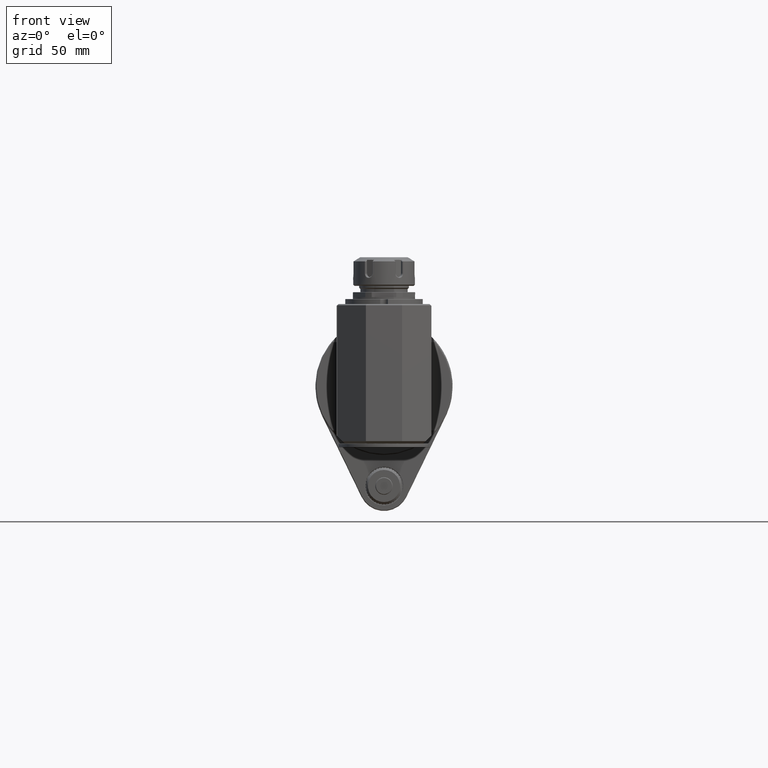
[diagram: clean part render]
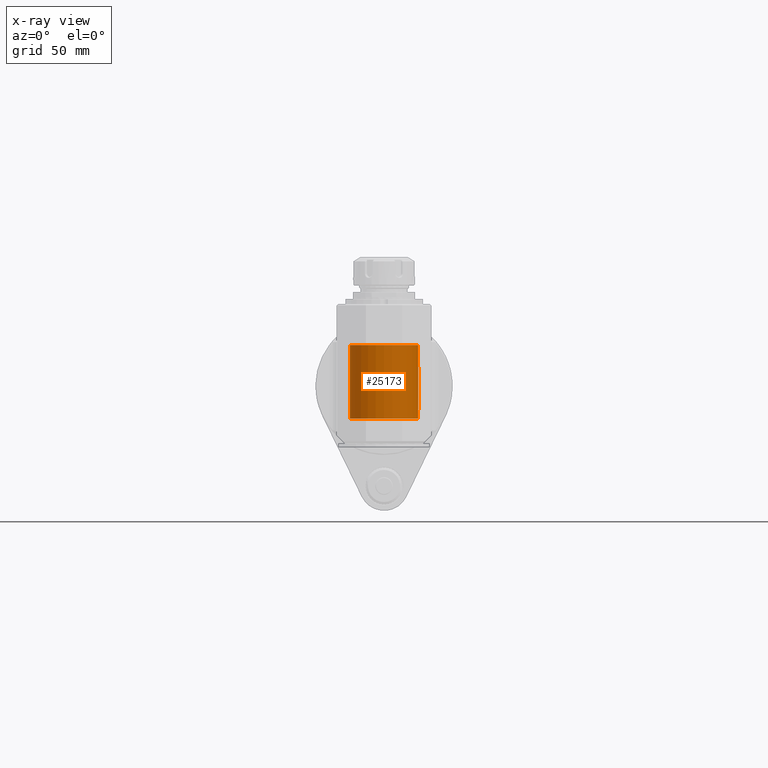
[diagram: x-ray — body ghosted, one internal face saturated and labeled with its STEP entity id]
A machine part, front view, then the same camera in x-ray: the body is ghosted and one INTERNAL B-rep face — a face not visible from any outside direction — is saturated and labeled: STEP entity #25173.
In plain terms, the highlighted cylindrical surface (bore or boss wall) has radius 27.5 mm, axis along (-0, 0, -1).
Its self-contained STEP definition (entity closure, byte-faithful):
#748=B_SPLINE_CURVE_WITH_KNOTS('',3,(#38055,#38056,#38057,#38058,#38059,
#38060,#38061,#38062),.UNSPECIFIED.,.F.,.F.,(4,2,2,4),(4.50933971728769,
5.05998838739807,5.61063705750845,5.68023043111932),.UNSPECIFIED.);
#749=B_SPLINE_CURVE_WITH_KNOTS('',3,(#38064,#38065,#38066,#38067,#38068,
#38069,#38070,#38071,#38072,#38073,#38074,#38075,#38076,#38077,#38078,#38079,
#38080,#38081),.UNSPECIFIED.,.F.,.F.,(4,2,2,2,2,2,2,2,4),(-13.9389251388673,
-13.4266385543453,-12.8601322798369,-12.1661254395227,-11.4721185992086,
-10.7781117588945,-10.4311083387374,-10.2576066286589,-10.0841049185803),
 .UNSPECIFIED.);
#750=B_SPLINE_CURVE_WITH_KNOTS('',3,(#38084,#38085,#38086,#38087,#38088,
#38089,#38090,#38091,#38092,#38093,#38094,#38095,#38096,#38097,#38098,#38099,
#38100,#38101),.UNSPECIFIED.,.F.,.F.,(4,2,2,2,2,2,2,2,4),(-10.0841049185803,
-9.9106032085018,-9.73710149842327,-9.3900980782662,-8.69609123795206,-8.00208439763792,
-7.30807755732379,-6.74157128281537,-6.22928469829335),.UNSPECIFIED.);
#751=B_SPLINE_CURVE_WITH_KNOTS('',3,(#38104,#38105,#38106,#38107,#38108,
#38109,#38110,#38111,#38112,#38113,#38114,#38115,#38116,#38117,#38118,#38119,
#38120,#38121),.UNSPECIFIED.,.F.,.F.,(4,2,2,2,2,2,2,2,4),(-3.85482022028688,
-3.34253363576488,-2.77602736125647,-2.08202052094235,-1.38801368062823,
-0.694006840314117,-0.347003420157058,-0.173501710078529,0.),
 .UNSPECIFIED.);
#752=B_SPLINE_CURVE_WITH_KNOTS('',3,(#38125,#38126,#38127,#38128,#38129,
#38130,#38131,#38132,#38133,#38134,#38135,#38136,#38137,#38138),
 .UNSPECIFIED.,.F.,.F.,(4,2,2,2,2,2,4),(0.,0.173501710078529,0.347003420157058,
0.694006840314117,1.38801368062823,2.08202052094235,2.51877903262772),
 .UNSPECIFIED.);
#753=B_SPLINE_CURVE_WITH_KNOTS('',3,(#38140,#38141,#38142,#38143,#38144,
#38145,#38146,#38147,#38148,#38149,#38150,#38151,#38152,#38153,#38154,#38155,
#38156,#38157,#38158),.UNSPECIFIED.,.F.,.F.,(4,2,3,2,2,2,2,2,4),(1.74205625490645,
1.79145138957435,1.88359491710517,1.97573844463599,2.06788197216681,2.20134562264296,
2.33480927311912,2.4846795320967,2.54489209367279),.UNSPECIFIED.);
#754=B_SPLINE_CURVE_WITH_KNOTS('',3,(#38159,#38160,#38161,#38162,#38163,
#38164,#38165,#38166,#38167,#38168,#38169,#38170,#38171,#38172,#38173,#38174,
#38175,#38176,#38177,#38178,#38179,#38180,#38181,#38182,#38183),
 .UNSPECIFIED.,.F.,.F.,(4,3,3,3,3,3,3,3,4),(0.,0.125,0.25,0.375,0.5,0.625,
0.75,0.875,1.),.UNSPECIFIED.);
#755=B_SPLINE_CURVE_WITH_KNOTS('',3,(#38184,#38185,#38186,#38187,#38188,
#38189,#38190,#38191),.UNSPECIFIED.,.F.,.F.,(4,2,2,4),(3.33844900345245,
3.40804237706694,3.95869104717731,4.50933971728769),.UNSPECIFIED.);
#1508=LINE('',#37997,#3593);
#1509=LINE('',#38001,#3594);
#1512=LINE('',#38009,#3597);
#1513=LINE('',#38013,#3598);
#1516=LINE('',#38054,#3601);
#1517=LINE('',#38083,#3602);
#1518=LINE('',#38123,#3603);
#3593=VECTOR('',#29472,4.864840069409);
#3594=VECTOR('',#29475,0.4510274179175);
#3597=VECTOR('',#29480,0.4510274179173);
#3598=VECTOR('',#29483,4.864840069409);
#3601=VECTOR('',#29492,27.5);
#3602=VECTOR('',#29493,10.53565375285);
#3603=VECTOR('',#29496,10.53565375285);
#5658=CYLINDRICAL_SURFACE('',#26834,27.5);
#6116=FACE_OUTER_BOUND('',#7636,.T.);
#7636=EDGE_LOOP('',(#16871,#16872,#16873,#16874,#16875,#16876,#16877,#16878,
#16879,#16880,#16881,#16882,#16883,#16884,#16885,#16886,#16887,#16888));
#9278=CIRCLE('',#26835,27.5);
#9279=CIRCLE('',#26836,27.5);
#10224=VERTEX_POINT('',#37995);
#10225=VERTEX_POINT('',#37996);
#10226=VERTEX_POINT('',#37998);
#10227=VERTEX_POINT('',#38000);
#10230=VERTEX_POINT('',#38006);
#10231=VERTEX_POINT('',#38008);
#10232=VERTEX_POINT('',#38010);
#10233=VERTEX_POINT('',#38012);
#10236=VERTEX_POINT('',#38051);
#10237=VERTEX_POINT('',#38053);
#10238=VERTEX_POINT('',#38063);
#10239=VERTEX_POINT('',#38082);
#10240=VERTEX_POINT('',#38103);
#10241=VERTEX_POINT('',#38122);
#10242=VERTEX_POINT('',#38124);
#10243=VERTEX_POINT('',#38139);
#12835=EDGE_CURVE('',#10224,#10225,#1508,.T.);
#12837=EDGE_CURVE('',#10226,#10227,#1509,.T.);
#12841=EDGE_CURVE('',#10231,#10230,#1512,.T.);
#12843=EDGE_CURVE('',#10233,#10232,#1513,.T.);
#12848=EDGE_CURVE('',#10236,#10236,#9278,.T.);
#12849=EDGE_CURVE('',#10236,#10237,#1516,.T.);
#12850=EDGE_CURVE('',#10233,#10237,#748,.F.);
#12851=EDGE_CURVE('',#10232,#10238,#749,.T.);
#12852=EDGE_CURVE('',#10238,#10239,#1517,.T.);
#12853=EDGE_CURVE('',#10239,#10231,#750,.T.);
#12854=EDGE_CURVE('',#10230,#10227,#9279,.T.);
#12855=EDGE_CURVE('',#10226,#10240,#751,.T.);
#12856=EDGE_CURVE('',#10241,#10240,#1518,.T.);
#12857=EDGE_CURVE('',#10241,#10242,#752,.T.);
#12858=EDGE_CURVE('',#10242,#10243,#753,.T.);
#12859=EDGE_CURVE('',#10243,#10225,#754,.T.);
#12860=EDGE_CURVE('',#10237,#10224,#755,.F.);
#16871=ORIENTED_EDGE('',*,*,#12848,.F.);
#16872=ORIENTED_EDGE('',*,*,#12849,.T.);
#16873=ORIENTED_EDGE('',*,*,#12850,.F.);
#16874=ORIENTED_EDGE('',*,*,#12843,.T.);
#16875=ORIENTED_EDGE('',*,*,#12851,.T.);
#16876=ORIENTED_EDGE('',*,*,#12852,.T.);
#16877=ORIENTED_EDGE('',*,*,#12853,.T.);
#16878=ORIENTED_EDGE('',*,*,#12841,.T.);
#16879=ORIENTED_EDGE('',*,*,#12854,.T.);
#16880=ORIENTED_EDGE('',*,*,#12837,.F.);
#16881=ORIENTED_EDGE('',*,*,#12855,.T.);
#16882=ORIENTED_EDGE('',*,*,#12856,.F.);
#16883=ORIENTED_EDGE('',*,*,#12857,.T.);
#16884=ORIENTED_EDGE('',*,*,#12858,.T.);
#16885=ORIENTED_EDGE('',*,*,#12859,.T.);
#16886=ORIENTED_EDGE('',*,*,#12835,.F.);
#16887=ORIENTED_EDGE('',*,*,#12860,.F.);
#16888=ORIENTED_EDGE('',*,*,#12849,.F.);
#25173=ADVANCED_FACE('',(#6116),#5658,.F.);
#26834=AXIS2_PLACEMENT_3D('',#38050,#29488,#29489);
#26835=AXIS2_PLACEMENT_3D('',#38052,#29490,#29491);
#26836=AXIS2_PLACEMENT_3D('',#38102,#29494,#29495);
#29472=DIRECTION('',(0.,0.,-1.));
#29475=DIRECTION('',(-1.126401712814E-12,0.,-1.));
#29480=DIRECTION('',(1.370586699509E-12,0.,-1.));
#29483=DIRECTION('',(-3.833989719619E-14,0.,-1.));
#29488=DIRECTION('center_axis',(0.,0.,-1.));
#29489=DIRECTION('ref_axis',(0.,-1.,0.));
#29490=DIRECTION('center_axis',(0.,0.,-1.));
#29491=DIRECTION('ref_axis',(0.,-1.,0.));
#29492=DIRECTION('',(0.,0.,-1.));
#29493=DIRECTION('',(0.,0.,-1.));
#29494=DIRECTION('center_axis',(0.,0.,-1.));
#29495=DIRECTION('ref_axis',(0.,-1.,0.));
#29496=DIRECTION('',(0.,0.,-1.));
#37995=CARTESIAN_POINT('',(-11.45643923739,-307.,30.41381265149));
#37996=CARTESIAN_POINT('',(-11.45643923739,-307.,25.54897258208));
#37997=CARTESIAN_POINT('',(-11.45643923739,-307.,30.41381265149));
#37998=CARTESIAN_POINT('',(-11.45643923739,-307.,-25.54897258208));
#38000=CARTESIAN_POINT('',(-11.45643923739,-307.,-26.));
#38001=CARTESIAN_POINT('',(-11.45643923739,-307.,-25.54897258208));
#38006=CARTESIAN_POINT('',(11.45643923739,-307.,-26.));
#38008=CARTESIAN_POINT('',(11.45643923739,-307.,-25.54897258208));
#38009=CARTESIAN_POINT('',(11.45643923739,-307.,-25.54897258208));
#38010=CARTESIAN_POINT('',(11.45643923739,-307.,25.54897258208));
#38012=CARTESIAN_POINT('',(11.45643923739,-307.,30.41381265149));
#38013=CARTESIAN_POINT('',(11.45643923739,-307.,30.41381265149));
#38050=CARTESIAN_POINT('Origin',(8.97459896121E-14,-332.,71.6));
#38051=CARTESIAN_POINT('',(9.31137683097552E-14,-304.5,33.));
#38052=CARTESIAN_POINT('Origin',(3.403499823641E-14,-332.,33.));
#38053=CARTESIAN_POINT('',(9.0133137871415E-14,-304.5,32.5));
#38054=CARTESIAN_POINT('',(9.31137683097552E-14,-304.5,71.6));
#38055=CARTESIAN_POINT('Ctrl Pts',(8.71525074330748E-14,-304.5,32.5));
#38056=CARTESIAN_POINT('Ctrl Pts',(1.83549556703468,-304.5,32.5));
#38057=CARTESIAN_POINT('Ctrl Pts',(3.70215856874767,-304.686672039644,32.3415650218572));
#38058=CARTESIAN_POINT('Ctrl Pts',(7.35372933162882,-305.435991883538,31.711283023599));
#38059=CARTESIAN_POINT('Ctrl Pts',(9.13876118456741,-305.998302704423,31.2397543992841));
#38060=CARTESIAN_POINT('Ctrl Pts',(11.0354854540303,-306.810286802044,30.5699034940791));
#38061=CARTESIAN_POINT('Ctrl Pts',(11.2467765551591,-306.903920488827,30.4927895231792));
#38062=CARTESIAN_POINT('Ctrl Pts',(11.4564392373902,-307.,30.4138126514909));
#38063=CARTESIAN_POINT('',(27.5,-332.,5.267826876426));
#38064=CARTESIAN_POINT('Ctrl Pts',(11.4564392373907,-307.000000000001,25.548972582082));
#38065=CARTESIAN_POINT('Ctrl Pts',(12.9581216495131,-307.688157332334,24.8756017350521));
#38066=CARTESIAN_POINT('Ctrl Pts',(14.3658617231166,-308.498635517362,24.0836752296404));
#38067=CARTESIAN_POINT('Ctrl Pts',(17.0717767698487,-310.371526879675,22.2596283420069));
#38068=CARTESIAN_POINT('Ctrl Pts',(18.3425547318723,-311.451681766612,21.2108514567289));
#38069=CARTESIAN_POINT('Ctrl Pts',(20.7965379858709,-313.905665020611,18.8422437393917));
#38070=CARTESIAN_POINT('Ctrl Pts',(21.9900055458772,-315.383885039703,17.4237175139346));
#38071=CARTESIAN_POINT('Ctrl Pts',(24.0129436307946,-318.470988205736,14.5094731667436));
#38072=CARTESIAN_POINT('Ctrl Pts',(24.8427195389039,-320.078643868422,13.0126669745263));
#38073=CARTESIAN_POINT('Ctrl Pts',(26.1475119602977,-323.305917944194,10.1389267429227));
#38074=CARTESIAN_POINT('Ctrl Pts',(26.6185592126295,-324.896056499018,8.77154722912447));
#38075=CARTESIAN_POINT('Ctrl Pts',(27.1150044695361,-327.339800481276,7.0105967266872));
#38076=CARTESIAN_POINT('Ctrl Pts',(27.2442441030921,-328.155284809419,6.47656045990662));
#38077=CARTESIAN_POINT('Ctrl Pts',(27.3871908226095,-329.472778109372,5.83014067086254));
#38078=CARTESIAN_POINT('Ctrl Pts',(27.426100836408,-329.927028811028,5.64176479669176));
#38079=CARTESIAN_POINT('Ctrl Pts',(27.48238756468,-330.901551710632,5.36086677523731));
#38080=CARTESIAN_POINT('Ctrl Pts',(27.5000000000001,-331.421660966405,5.26782687642587));
#38081=CARTESIAN_POINT('Ctrl Pts',(27.5000000000001,-332.,5.26782687642587));
#38082=CARTESIAN_POINT('',(27.5,-332.,-5.267826876426));
#38083=CARTESIAN_POINT('',(27.5,-332.,5.267826876426));
#38084=CARTESIAN_POINT('Ctrl Pts',(27.5000000000001,-332.,-5.26782687642584));
#38085=CARTESIAN_POINT('Ctrl Pts',(27.5000000000001,-331.421660966405,-5.26782687642584));
#38086=CARTESIAN_POINT('Ctrl Pts',(27.48238756468,-330.901551710632,-5.36086677523729));
#38087=CARTESIAN_POINT('Ctrl Pts',(27.426100836408,-329.927028811028,-5.64176479669174));
#38088=CARTESIAN_POINT('Ctrl Pts',(27.3871908226095,-329.472778109372,-5.83014067086251));
#38089=CARTESIAN_POINT('Ctrl Pts',(27.2442441030921,-328.155284809419,-6.47656045990659));
#38090=CARTESIAN_POINT('Ctrl Pts',(27.1150044695361,-327.339800481276,-7.01059672668718));
#38091=CARTESIAN_POINT('Ctrl Pts',(26.6185592126295,-324.896056499018,-8.77154722912446));
#38092=CARTESIAN_POINT('Ctrl Pts',(26.1475119602977,-323.305917944194,-10.1389267429227));
#38093=CARTESIAN_POINT('Ctrl Pts',(24.8427195389039,-320.078643868422,-13.0126669745263));
#38094=CARTESIAN_POINT('Ctrl Pts',(24.0129436307946,-318.470988205736,-14.5094731667436));
#38095=CARTESIAN_POINT('Ctrl Pts',(21.9900055458772,-315.383885039703,-17.4237175139346));
#38096=CARTESIAN_POINT('Ctrl Pts',(20.7965379858709,-313.905665020611,-18.8422437393917));
#38097=CARTESIAN_POINT('Ctrl Pts',(18.3425547318723,-311.451681766612,-21.2108514567289));
#38098=CARTESIAN_POINT('Ctrl Pts',(17.0717767698487,-310.371526879675,-22.2596283420069));
#38099=CARTESIAN_POINT('Ctrl Pts',(14.3658617231166,-308.498635517362,-24.0836752296404));
#38100=CARTESIAN_POINT('Ctrl Pts',(12.9581216495131,-307.688157332334,-24.8756017350521));
#38101=CARTESIAN_POINT('Ctrl Pts',(11.4564392373907,-307.000000000001,-25.5489725820819));
#38102=CARTESIAN_POINT('Origin',(-5.111910775234E-14,-332.,-26.));
#38103=CARTESIAN_POINT('',(-27.5,-332.,-5.267826876426));
#38104=CARTESIAN_POINT('Ctrl Pts',(-11.4564392373906,-307.000000000001,
-25.548972582082));
#38105=CARTESIAN_POINT('Ctrl Pts',(-12.9581216495129,-307.688157332334,
-24.8756017350522));
#38106=CARTESIAN_POINT('Ctrl Pts',(-14.3658617231165,-308.498635517362,
-24.0836752296405));
#38107=CARTESIAN_POINT('Ctrl Pts',(-17.0717767698484,-310.371526879675,
-22.2596283420071));
#38108=CARTESIAN_POINT('Ctrl Pts',(-18.3425547318721,-311.451681766612,
-21.2108514567291));
#38109=CARTESIAN_POINT('Ctrl Pts',(-20.7965379858706,-313.905665020611,
-18.842243739392));
#38110=CARTESIAN_POINT('Ctrl Pts',(-21.9900055458769,-315.383885039703,
-17.4237175139349));
#38111=CARTESIAN_POINT('Ctrl Pts',(-24.0129436307943,-318.470988205735,
-14.5094731667441));
#38112=CARTESIAN_POINT('Ctrl Pts',(-24.8427195389036,-320.078643868422,
-13.0126669745268));
#38113=CARTESIAN_POINT('Ctrl Pts',(-26.1475119602975,-323.305917944194,
-10.1389267429234));
#38114=CARTESIAN_POINT('Ctrl Pts',(-26.6185592126293,-324.896056499018,
-8.77154722912518));
#38115=CARTESIAN_POINT('Ctrl Pts',(-27.1150044695359,-327.339800481276,
-7.01059672668804));
#38116=CARTESIAN_POINT('Ctrl Pts',(-27.2442441030919,-328.155284809419,
-6.4765604599075));
#38117=CARTESIAN_POINT('Ctrl Pts',(-27.3871908226093,-329.472778109372,
-5.83014067086349));
#38118=CARTESIAN_POINT('Ctrl Pts',(-27.4261008364079,-329.927028811028,
-5.64176479669274));
#38119=CARTESIAN_POINT('Ctrl Pts',(-27.4823875646799,-330.901551710632,
-5.36086677523834));
#38120=CARTESIAN_POINT('Ctrl Pts',(-27.4999999999999,-331.421660966405,
-5.2678268764269));
#38121=CARTESIAN_POINT('Ctrl Pts',(-27.4999999999999,-332.,-5.2678268764269));
#38122=CARTESIAN_POINT('',(-27.5,-332.,5.267826876426));
#38123=CARTESIAN_POINT('',(-27.5,-332.,5.267826876426));
#38124=CARTESIAN_POINT('',(-20.88206766908,-314.1061672674,18.65312976055));
#38125=CARTESIAN_POINT('Ctrl Pts',(-27.4999999999999,-332.,5.26782687642693));
#38126=CARTESIAN_POINT('Ctrl Pts',(-27.4999999999999,-331.421660966405,
5.26782687642693));
#38127=CARTESIAN_POINT('Ctrl Pts',(-27.4823875646799,-330.901551710632,
5.36086677523837));
#38128=CARTESIAN_POINT('Ctrl Pts',(-27.4261008364079,-329.927028811028,
5.64176479669276));
#38129=CARTESIAN_POINT('Ctrl Pts',(-27.3871908226093,-329.472778109372,
5.83014067086351));
#38130=CARTESIAN_POINT('Ctrl Pts',(-27.2442441030919,-328.155284809419,
6.47656045990753));
#38131=CARTESIAN_POINT('Ctrl Pts',(-27.1150044695359,-327.339800481276,
7.01059672668806));
#38132=CARTESIAN_POINT('Ctrl Pts',(-26.6185592126293,-324.896056499018,
8.77154722912521));
#38133=CARTESIAN_POINT('Ctrl Pts',(-26.1475119602975,-323.305917944194,
10.1389267429234));
#38134=CARTESIAN_POINT('Ctrl Pts',(-24.8427195389036,-320.078643868422,
13.0126669745268));
#38135=CARTESIAN_POINT('Ctrl Pts',(-24.0129436307943,-318.470988205735,
14.5094731667441));
#38136=CARTESIAN_POINT('Ctrl Pts',(-22.3649279609275,-315.956035113474,
16.8836043306187));
#38137=CARTESIAN_POINT('Ctrl Pts',(-21.6568890832638,-315.010382336545,
17.7857218021997));
#38138=CARTESIAN_POINT('Ctrl Pts',(-20.8820676690957,-314.106167267371,
18.6531297605338));
#38139=CARTESIAN_POINT('',(-17.24677088604,-310.5804086406,22.05785334081));
#38140=CARTESIAN_POINT('Ctrl Pts',(-20.8820676690916,-314.106167267366,
18.6531297605652));
#38141=CARTESIAN_POINT('Ctrl Pts',(-20.9543021238959,-314.190464734309,
18.7849498575568));
#38142=CARTESIAN_POINT('Ctrl Pts',(-21.0178589535977,-314.265686345916,
18.9303561151519));
#38143=CARTESIAN_POINT('Ctrl Pts',(-21.1637417254344,-314.439593600875,
19.3723171754151));
#38144=CARTESIAN_POINT('Ctrl Pts',(-21.2132034355963,-314.5,19.6928549082306));
#38145=CARTESIAN_POINT('Ctrl Pts',(-21.2132034355963,-314.5,20.));
#38146=CARTESIAN_POINT('Ctrl Pts',(-21.2132034355963,-314.5,20.3071450917694));
#38147=CARTESIAN_POINT('Ctrl Pts',(-21.1637417254344,-314.439593600875,
20.6276828245849));
#38148=CARTESIAN_POINT('Ctrl Pts',(-20.9737985255455,-314.213161788024,
21.2031277311749));
#38149=CARTESIAN_POINT('Ctrl Pts',(-20.8332972173374,-314.047882336667,
21.4583216143465));
#38150=CARTESIAN_POINT('Ctrl Pts',(-20.4554595320484,-313.616878759338,
21.945163052824));
#38151=CARTESIAN_POINT('Ctrl Pts',(-20.1698328536079,-313.301492882519,
22.1640017219762));
#38152=CARTESIAN_POINT('Ctrl Pts',(-19.5412928441447,-312.645563790883,
22.4413180617697));
#38153=CARTESIAN_POINT('Ctrl Pts',(-19.1981343317553,-312.305341958855,
22.5));
#38154=CARTESIAN_POINT('Ctrl Pts',(-18.5112642482311,-311.657122532712,
22.5));
#38155=CARTESIAN_POINT('Ctrl Pts',(-18.1082220917788,-311.297154034765,
22.4267189640483));
#38156=CARTESIAN_POINT('Ctrl Pts',(-17.55570733681,-310.83186352894,22.2151565415406));
#38157=CARTESIAN_POINT('Ctrl Pts',(-17.3988159441124,-310.70283330485,22.1423068789309));
#38158=CARTESIAN_POINT('Ctrl Pts',(-17.2467708860484,-310.580408640589,
22.0578533408107));
#38159=CARTESIAN_POINT('Ctrl Pts',(-17.2467708860486,-310.580408640589,
22.05785334081));
#38160=CARTESIAN_POINT('Ctrl Pts',(-17.0126776054172,-310.391919835678,
22.24088806838));
#38161=CARTESIAN_POINT('Ctrl Pts',(-16.7771333254944,-310.20858891534,22.41905127438));
#38162=CARTESIAN_POINT('Ctrl Pts',(-16.5404124426249,-310.030367407991,
22.5923605722767));
#38163=CARTESIAN_POINT('Ctrl Pts',(-16.3036915597554,-309.852145900643,
22.7656698701733));
#38164=CARTESIAN_POINT('Ctrl Pts',(-16.0657944204866,-309.679033376408,
22.9341252599667));
#38165=CARTESIAN_POINT('Ctrl Pts',(-15.826949197628,-309.510943125696,23.097785155625));
#38166=CARTESIAN_POINT('Ctrl Pts',(-15.5881039747695,-309.342852874984,
23.2614450512833));
#38167=CARTESIAN_POINT('Ctrl Pts',(-15.3483103610144,-309.179785266395,
23.4203094528067));
#38168=CARTESIAN_POINT('Ctrl Pts',(-15.1078279653721,-309.021672511501,
23.5744254260617));
#38169=CARTESIAN_POINT('Ctrl Pts',(-14.8673455697299,-308.863559756607,
23.7285413993167));
#38170=CARTESIAN_POINT('Ctrl Pts',(-14.6261766732091,-308.71039843333,23.8779089443033));
#38171=CARTESIAN_POINT('Ctrl Pts',(-14.3842314090904,-308.561913756244,
24.0227784981283));
#38172=CARTESIAN_POINT('Ctrl Pts',(-14.1422861449718,-308.413429079158,
24.1676480519533));
#38173=CARTESIAN_POINT('Ctrl Pts',(-13.8995624804272,-308.269624441601,
24.3080196146167));
#38174=CARTESIAN_POINT('Ctrl Pts',(-13.6562770507772,-308.130435757802,
24.4439378397217));
#38175=CARTESIAN_POINT('Ctrl Pts',(-13.4129916211271,-307.991247074003,
24.5798560648267));
#38176=CARTESIAN_POINT('Ctrl Pts',(-13.1691443052961,-307.856674430873,
24.7113209523733));
#38177=CARTESIAN_POINT('Ctrl Pts',(-12.9249607357575,-307.726652682847,
24.8383854140867));
#38178=CARTESIAN_POINT('Ctrl Pts',(-12.680777166219,-307.596630934822,24.9654498758));
#38179=CARTESIAN_POINT('Ctrl Pts',(-12.4362582515003,-307.4711584325,25.08811391168));
#38180=CARTESIAN_POINT('Ctrl Pts',(-12.1914550552512,-307.350082685011,
25.2065154996775));
#38181=CARTESIAN_POINT('Ctrl Pts',(-11.9466518590021,-307.229006937522,
25.324917087675));
#38182=CARTESIAN_POINT('Ctrl Pts',(-11.7015633867129,-307.112329996894,
25.43905622779));
#38183=CARTESIAN_POINT('Ctrl Pts',(-11.4564392373899,-307.,25.54897258208));
#38184=CARTESIAN_POINT('Ctrl Pts',(-11.4564392374227,-307.000000000015,
30.4138126514786));
#38185=CARTESIAN_POINT('Ctrl Pts',(-11.2467765551809,-306.903920488837,
30.4927895231712));
#38186=CARTESIAN_POINT('Ctrl Pts',(-11.0354854540412,-306.810286802049,
30.5699034940753));
#38187=CARTESIAN_POINT('Ctrl Pts',(-9.13876118456723,-305.998302704423,
31.2397543992842));
#38188=CARTESIAN_POINT('Ctrl Pts',(-7.35372933162864,-305.435991883538,
31.711283023599));
#38189=CARTESIAN_POINT('Ctrl Pts',(-3.70215856874749,-304.686672039644,
32.3415650218573));
#38190=CARTESIAN_POINT('Ctrl Pts',(-1.8354955670345,-304.5,32.5));
#38191=CARTESIAN_POINT('Ctrl Pts',(8.71525074330748E-14,-304.5,32.5));